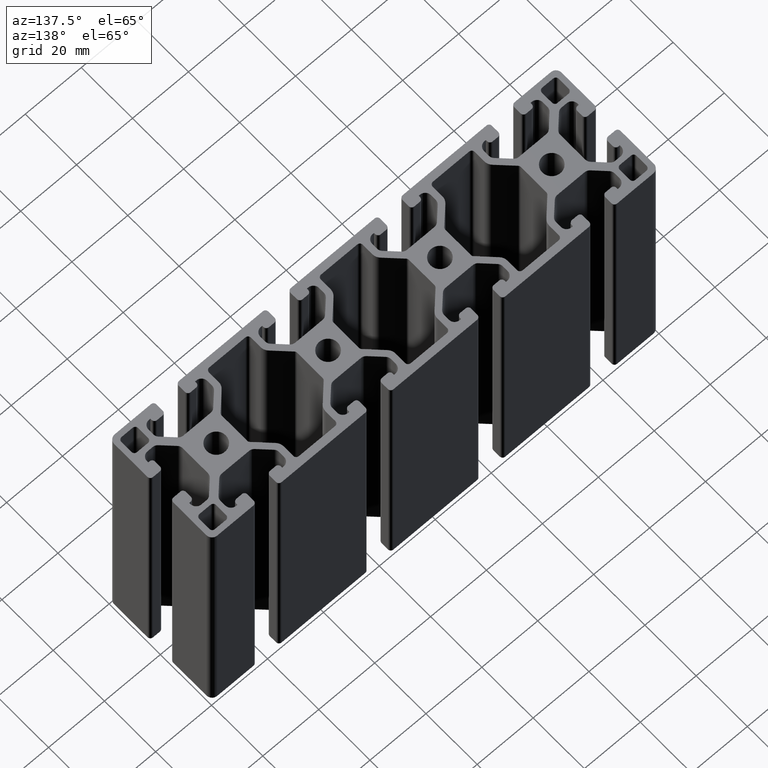
[diagram: clean part render]
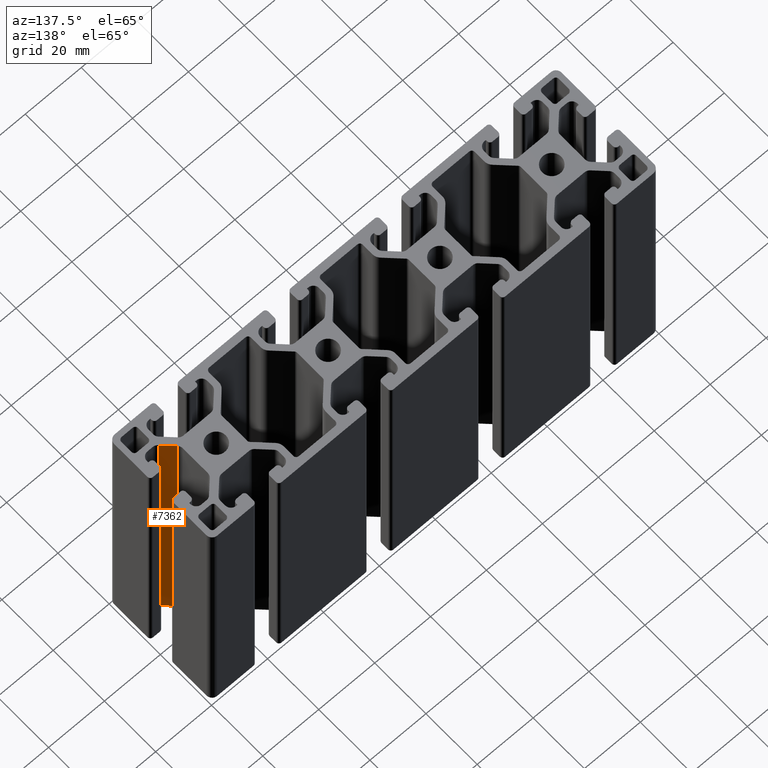
[diagram: same view with one face highlighted and labeled with its STEP entity id]
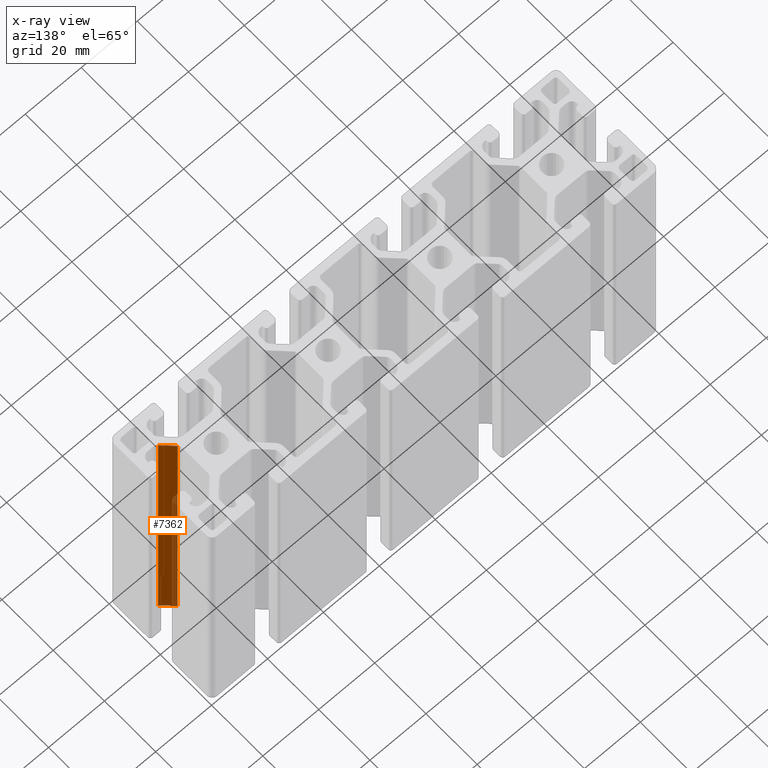
[diagram: x-ray of the same camera — body ghosted, the highlighted face saturated]
A machine part, auxiliary view. The second image highlights one B-rep face of the part: STEP entity #7362.
The next image is the same camera in x-ray: the body ghosted, the highlighted face saturated — about 19% of this face is hidden behind the body in this view.
In plain terms, the highlighted planar face has unit normal (-0.7071, -0.7071, 0).
Its self-contained STEP definition (entity closure, byte-faithful):
#116=PLANE('',#7890);
#388=FACE_OUTER_BOUND('',#768,.T.);
#768=EDGE_LOOP('',(#5377,#5378,#5379,#5380));
#1320=LINE('',#11474,#2084);
#1321=LINE('',#11477,#2085);
#1322=LINE('',#11479,#2086);
#1323=LINE('',#11480,#2087);
#2084=VECTOR('',#9226,100.);
#2085=VECTOR('',#9229,5.08578643762692);
#2086=VECTOR('',#9230,5.08578643762692);
#2087=VECTOR('',#9231,100.);
#3211=VERTEX_POINT('',#11470);
#3212=VERTEX_POINT('',#11472);
#3213=VERTEX_POINT('',#11476);
#3214=VERTEX_POINT('',#11478);
#4108=EDGE_CURVE('',#3212,#3211,#1320,.T.);
#4109=EDGE_CURVE('',#3211,#3213,#1321,.T.);
#4110=EDGE_CURVE('',#3214,#3212,#1322,.T.);
#4111=EDGE_CURVE('',#3214,#3213,#1323,.T.);
#5377=ORIENTED_EDGE('',*,*,#4109,.F.);
#5378=ORIENTED_EDGE('',*,*,#4108,.F.);
#5379=ORIENTED_EDGE('',*,*,#4110,.F.);
#5380=ORIENTED_EDGE('',*,*,#4111,.T.);
#7362=ADVANCED_FACE('',(#388),#116,.F.);
#7890=AXIS2_PLACEMENT_3D('',#11475,#9227,#9228);
#9226=DIRECTION('',(0.,0.,1.));
#9227=DIRECTION('center_axis',(-0.707106781186548,-0.707106781186547,0.));
#9228=DIRECTION('ref_axis',(0.707106781186547,-0.707106781186548,0.));
#9229=DIRECTION('',(-0.707106781186547,0.707106781186548,0.));
#9230=DIRECTION('',(0.707106781186547,-0.707106781186548,0.));
#9231=DIRECTION('',(0.,0.,1.));
#11470=CARTESIAN_POINT('',(71.6819805153395,-9.91421356237309,100.));
#11472=CARTESIAN_POINT('',(71.6819805153395,-9.91421356237309,0.));
#11474=CARTESIAN_POINT('',(71.6819805153395,-9.91421356237309,0.));
#11475=CARTESIAN_POINT('Origin',(68.0857864376269,-6.31801948466052,0.));
#11476=CARTESIAN_POINT('',(68.0857864376269,-6.31801948466052,100.));
#11477=CARTESIAN_POINT('',(49.4848349570551,12.2829319959113,100.));
#11478=CARTESIAN_POINT('',(68.0857864376269,-6.31801948466052,0.));
#11479=CARTESIAN_POINT('',(49.4848349570551,12.2829319959113,0.));
#11480=CARTESIAN_POINT('',(68.0857864376269,-6.31801948466052,0.));